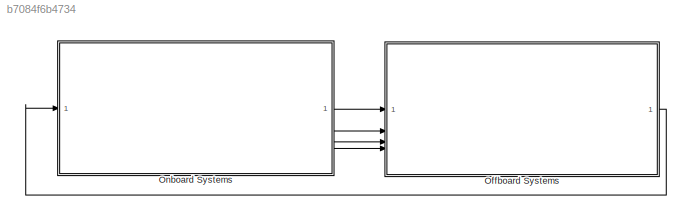
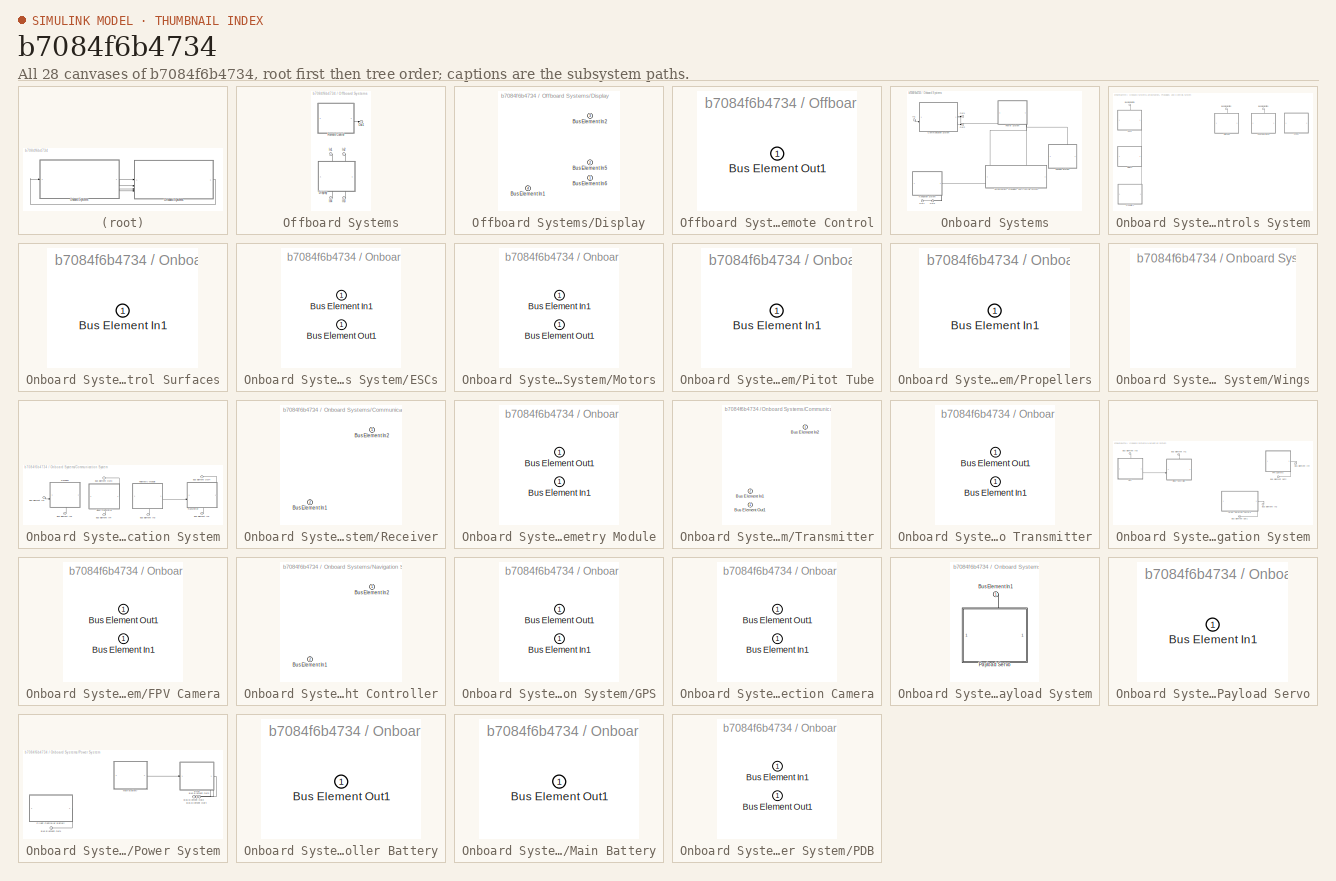
[diagram: thumbnail index - all 28 canvases of the model, root first then tree order]
MODEL slx_b7084f6b4734
KIND model
CONFIG AbsTol = auto
CONFIG EnableMultiTasking = off
CONFIG FixedStep = auto
CONFIG MaxStep = auto
CONFIG MinStep = auto
CONFIG RelTol = 1e-3
CONFIG SampleTimeConstraint = Unconstrained
CONFIG SolverName = VariableStepAuto
CONFIG StartTime = 0.0
CONFIG StopTime = 10.0
BLOCK [SubSystem] Offboard Systems
  PortSchema = {"entries":[{"content":{"headerSize":26,"margin":15,"minimumSpacing":25,"sides":[{"content":{"connectorIds":["In2","In1","In4","In3"]},"type":"ConnectorPlacement.EquallySpacedRectSide","uuid":"d7d6a46a-69a6-4a79-809b-721a0c8eab4f"},{"content":{"connectorIds":["Out1"],"side":"RIGHT"},"type":"ConnectorPlacement.EquallySpacedRectSide","uuid":"fe49b777-678a-4db7-ba73-a39a909a246c"},{"content":{"side":...<+288ch>
BLOCK [SubSystem] Offboard Systems/Display
  PortSchema = {"entries":[{"content":{"headerSize":26,"margin":15,"minimumSpacing":25,"sides":[{"content":{},"type":"ConnectorPlacement.EquallySpacedRectSide","uuid":"6c101896-e527-45ce-9d84-a3c14c06145c"},{"content":{"side":"RIGHT"},"type":"ConnectorPlacement.EquallySpacedRectSide","uuid":"7b64ffc1-aa7d-497e-846b-163cb9ac8cea"},{"content":{"connectorIds":["In4","In3"],"side":"TOP"},"type":"ConnectorPlacement.E...<+408ch>
BLOCK [Inport] Offboard Systems/Display/Bus Element In1
  Port = 4
BLOCK [Inport] Offboard Systems/Display/Bus Element In2
  Port = 3
BLOCK [Inport] Offboard Systems/Display/Bus Element In5
  Port = 2
BLOCK [Inport] Offboard Systems/Display/Bus Element In6
BLOCK [Inport] Offboard Systems/In1
BLOCK [Inport] Offboard Systems/In2
  Port = 2
BLOCK [Inport] Offboard Systems/In3
  Port = 3
BLOCK [Inport] Offboard Systems/In4
  Port = 4
BLOCK [Outport] Offboard Systems/Out1
BLOCK [SubSystem] Offboard Systems/Remote Control
  PortSchema = {"entries":[{"content":{"headerSize":26,"margin":15,"minimumSpacing":25,"sides":[{"content":{},"type":"ConnectorPlacement.EquallySpacedRectSide","uuid":"6c101896-e527-45ce-9d84-a3c14c06145c"},{"content":{"connectorIds":["Out1"],"side":"RIGHT"},"type":"ConnectorPlacement.EquallySpacedRectSide","uuid":"7b64ffc1-aa7d-497e-846b-163cb9ac8cea"},{"content":{"side":"TOP"},"type":"ConnectorPlacement.Equall...<+248ch>
BLOCK [Outport] Offboard Systems/Remote Control/Bus Element Out1
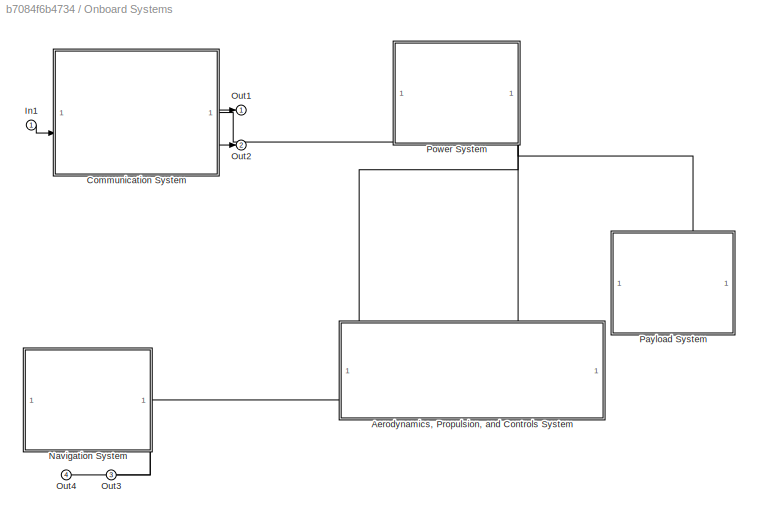
BLOCK [SubSystem] Onboard Systems
  PortSchema = {"entries":[{"content":{"headerSize":26,"margin":15,"minimumSpacing":25,"sides":[{"content":{"connectorIds":["In1"]},"type":"ConnectorPlacement.EquallySpacedRectSide","uuid":"d7d6a46a-69a6-4a79-809b-721a0c8eab4f"},{"content":{"connectorIds":["Out1","Out2","Out3","Out4"],"side":"RIGHT"},"type":"ConnectorPlacement.EquallySpacedRectSide","uuid":"fe49b777-678a-4db7-ba73-a39a909a246c"},{"content":{"sid...<+291ch>
BLOCK [SubSystem] Onboard Systems/Aerodynamics, Propulsion, and Controls System
  PortSchema = {"entries":[{"content":{"headerSize":26,"margin":15,"minimumSpacing":25,"sides":[{"content":{},"type":"ConnectorPlacement.EquallySpacedRectSide","uuid":"6c101896-e527-45ce-9d84-a3c14c06145c"},{"content":{"side":"RIGHT"},"type":"ConnectorPlacement.EquallySpacedRectSide","uuid":"7b64ffc1-aa7d-497e-846b-163cb9ac8cea"},{"content":{"connectorIds":["In1"],"side":"TOP"},"type":"ConnectorPlacement.Equally...<+247ch>  <repeated x6 — deduplicated; at blocks: Aerodynamics, Propulsion, and Controls System, Control Surfaces, Pitot Tube, Propellers, Payload System, Payload Servo>
BLOCK [Inport] Onboard Systems/Aerodynamics, Propulsion, and Controls System/Bus Element In1
BLOCK [Inport] Onboard Systems/Aerodynamics, Propulsion, and Controls System/Bus Element In2
BLOCK [Inport] Onboard Systems/Aerodynamics, Propulsion, and Controls System/Bus Element In3
BLOCK [SubSystem] Onboard Systems/Aerodynamics, Propulsion, and Controls System/Control Surfaces
BLOCK [Inport] Onboard Systems/Aerodynamics, Propulsion, and Controls System/Control Surfaces/Bus Element In1
BLOCK [SubSystem] Onboard Systems/Aerodynamics, Propulsion, and Controls System/ESCs
  PortSchema = {"entries":[{"content":{"headerSize":26,"margin":15,"minimumSpacing":25,"sides":[{"content":{},"type":"ConnectorPlacement.EquallySpacedRectSide","uuid":"6c101896-e527-45ce-9d84-a3c14c06145c"},{"content":{"side":"RIGHT"},"type":"ConnectorPlacement.EquallySpacedRectSide","uuid":"7b64ffc1-aa7d-497e-846b-163cb9ac8cea"},{"content":{"connectorIds":["In1"],"side":"TOP"},"type":"ConnectorPlacement.Equally...<+397ch>
BLOCK [Inport] Onboard Systems/Aerodynamics, Propulsion, and Controls System/ESCs/Bus Element In1
BLOCK [Outport] Onboard Systems/Aerodynamics, Propulsion, and Controls System/ESCs/Bus Element Out1
BLOCK [SubSystem] Onboard Systems/Aerodynamics, Propulsion, and Controls System/Motors
  PortSchema = {"entries":[{"content":{"headerSize":26,"margin":15,"minimumSpacing":25,"sides":[{"content":{},"type":"ConnectorPlacement.EquallySpacedRectSide","uuid":"6c101896-e527-45ce-9d84-a3c14c06145c"},{"content":{"side":"RIGHT"},"type":"ConnectorPlacement.EquallySpacedRectSide","uuid":"7b64ffc1-aa7d-497e-846b-163cb9ac8cea"},{"content":{"connectorIds":["In1"],"side":"TOP"},"type":"ConnectorPlacement.Equally...<+397ch>
BLOCK [Inport] Onboard Systems/Aerodynamics, Propulsion, and Controls System/Motors/Bus Element In1
BLOCK [Outport] Onboard Systems/Aerodynamics, Propulsion, and Controls System/Motors/Bus Element Out1
BLOCK [SubSystem] Onboard Systems/Aerodynamics, Propulsion, and Controls System/Pitot Tube
BLOCK [Inport] Onboard Systems/Aerodynamics, Propulsion, and Controls System/Pitot Tube/Bus Element In1
BLOCK [SubSystem] Onboard Systems/Aerodynamics, Propulsion, and Controls System/Propellers
BLOCK [Inport] Onboard Systems/Aerodynamics, Propulsion, and Controls System/Propellers/Bus Element In1
BLOCK [SubSystem] Onboard Systems/Aerodynamics, Propulsion, and Controls System/Wings
  PortSchema = {"entries":[{"content":{"headerSize":26,"margin":15,"minimumSpacing":25,"sides":[{"content":{},"type":"ConnectorPlacement.EquallySpacedRectSide","uuid":"6c101896-e527-45ce-9d84-a3c14c06145c"},{"content":{"side":"RIGHT"},"type":"ConnectorPlacement.EquallySpacedRectSide","uuid":"7b64ffc1-aa7d-497e-846b-163cb9ac8cea"},{"content":{"side":"TOP"},"type":"ConnectorPlacement.EquallySpacedRectSide","uuid":...<+224ch>
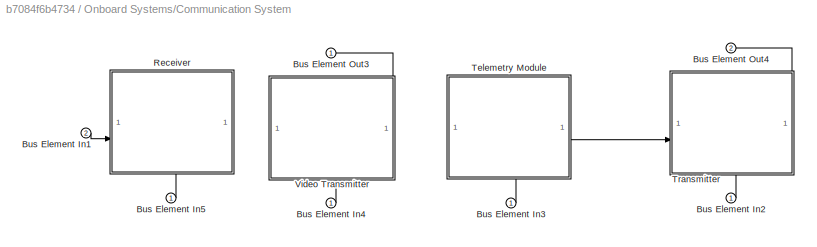
BLOCK [SubSystem] Onboard Systems/Communication System
  PortSchema = {"entries":[{"content":{"headerSize":26,"margin":15,"minimumSpacing":25,"sides":[{"content":{"connectorIds":["In2"]},"type":"ConnectorPlacement.EquallySpacedRectSide","uuid":"6c101896-e527-45ce-9d84-a3c14c06145c"},{"content":{"connectorIds":["Out1","Out2"],"side":"RIGHT"},"type":"ConnectorPlacement.EquallySpacedRectSide","uuid":"7b64ffc1-aa7d-497e-846b-163cb9ac8cea"},{"content":{"side":"TOP"},"typ...<+426ch>
BLOCK [Inport] Onboard Systems/Communication System/Bus Element In1
  Port = 2
BLOCK [Inport] Onboard Systems/Communication System/Bus Element In2
BLOCK [Inport] Onboard Systems/Communication System/Bus Element In3
BLOCK [Inport] Onboard Systems/Communication System/Bus Element In4
BLOCK [Inport] Onboard Systems/Communication System/Bus Element In5
BLOCK [Outport] Onboard Systems/Communication System/Bus Element Out3
BLOCK [Outport] Onboard Systems/Communication System/Bus Element Out4
  Port = 2
BLOCK [SubSystem] Onboard Systems/Communication System/Receiver
  PortSchema = {"entries":[{"content":{"headerSize":26,"margin":15,"minimumSpacing":25,"sides":[{"content":{"connectorIds":["In2"]},"type":"ConnectorPlacement.EquallySpacedRectSide","uuid":"6c101896-e527-45ce-9d84-a3c14c06145c"},{"content":{"side":"RIGHT"},"type":"ConnectorPlacement.EquallySpacedRectSide","uuid":"7b64ffc1-aa7d-497e-846b-163cb9ac8cea"},{"content":{"side":"TOP"},"type":"ConnectorPlacement.EquallyS...<+395ch>
BLOCK [Inport] Onboard Systems/Communication System/Receiver/Bus Element In1
  Port = 2
BLOCK [Inport] Onboard Systems/Communication System/Receiver/Bus Element In2
BLOCK [SubSystem] Onboard Systems/Communication System/Telemetry Module
  PortSchema = {"entries":[{"content":{"headerSize":26,"margin":15,"minimumSpacing":25,"sides":[{"content":{},"type":"ConnectorPlacement.EquallySpacedRectSide","uuid":"6c101896-e527-45ce-9d84-a3c14c06145c"},{"content":{"connectorIds":["Out1"],"side":"RIGHT"},"type":"ConnectorPlacement.EquallySpacedRectSide","uuid":"7b64ffc1-aa7d-497e-846b-163cb9ac8cea"},{"content":{"side":"TOP"},"type":"ConnectorPlacement.Equall...<+397ch>
BLOCK [Inport] Onboard Systems/Communication System/Telemetry Module/Bus Element In1
BLOCK [Outport] Onboard Systems/Communication System/Telemetry Module/Bus Element Out1
BLOCK [SubSystem] Onboard Systems/Communication System/Transmitter
  PortSchema = {"entries":[{"content":{"headerSize":26,"margin":15,"minimumSpacing":25,"sides":[{"content":{"connectorIds":["In2"]},"type":"ConnectorPlacement.EquallySpacedRectSide","uuid":"6c101896-e527-45ce-9d84-a3c14c06145c"},{"content":{"side":"RIGHT"},"type":"ConnectorPlacement.EquallySpacedRectSide","uuid":"7b64ffc1-aa7d-497e-846b-163cb9ac8cea"},{"content":{"connectorIds":["Out1"],"side":"TOP"},"type":"Con...<+419ch>
BLOCK [Inport] Onboard Systems/Communication System/Transmitter/Bus Element In1
  Port = 2
BLOCK [Inport] Onboard Systems/Communication System/Transmitter/Bus Element In2
BLOCK [Outport] Onboard Systems/Communication System/Transmitter/Bus Element Out1
BLOCK [SubSystem] Onboard Systems/Communication System/Video Transmitter
  PortSchema = {"entries":[{"content":{"headerSize":26,"margin":15,"minimumSpacing":25,"sides":[{"content":{},"type":"ConnectorPlacement.EquallySpacedRectSide","uuid":"6c101896-e527-45ce-9d84-a3c14c06145c"},{"content":{"side":"RIGHT"},"type":"ConnectorPlacement.EquallySpacedRectSide","uuid":"7b64ffc1-aa7d-497e-846b-163cb9ac8cea"},{"content":{"connectorIds":["Out1"],"side":"TOP"},"type":"ConnectorPlacement.Equall...<+397ch>
BLOCK [Inport] Onboard Systems/Communication System/Video Transmitter/Bus Element In1
BLOCK [Outport] Onboard Systems/Communication System/Video Transmitter/Bus Element Out1
BLOCK [Inport] Onboard Systems/In1
BLOCK [SubSystem] Onboard Systems/Navigation System
  PortSchema = {"entries":[{"content":{"headerSize":26,"margin":15,"minimumSpacing":25,"sides":[{"content":{},"type":"ConnectorPlacement.EquallySpacedRectSide","uuid":"6c101896-e527-45ce-9d84-a3c14c06145c"},{"content":{"connectorIds":["In1"],"side":"RIGHT"},"type":"ConnectorPlacement.EquallySpacedRectSide","uuid":"7b64ffc1-aa7d-497e-846b-163cb9ac8cea"},{"content":{"side":"TOP"},"type":"ConnectorPlacement.Equally...<+404ch>
BLOCK [Inport] Onboard Systems/Navigation System/Bus Element In1
BLOCK [Inport] Onboard Systems/Navigation System/Bus Element In2
BLOCK [Inport] Onboard Systems/Navigation System/Bus Element In3
BLOCK [Inport] Onboard Systems/Navigation System/Bus Element In4
BLOCK [Outport] Onboard Systems/Navigation System/Bus Element Out1
  Port = 2
BLOCK [Outport] Onboard Systems/Navigation System/Bus Element Out2
BLOCK [SubSystem] Onboard Systems/Navigation System/FPV Camera
  PortSchema = {"entries":[{"content":{"headerSize":26,"margin":15,"minimumSpacing":25,"sides":[{"content":{},"type":"ConnectorPlacement.EquallySpacedRectSide","uuid":"6c101896-e527-45ce-9d84-a3c14c06145c"},{"content":{"connectorIds":["In1"],"side":"RIGHT"},"type":"ConnectorPlacement.EquallySpacedRectSide","uuid":"7b64ffc1-aa7d-497e-846b-163cb9ac8cea"},{"content":{"side":"TOP"},"type":"ConnectorPlacement.Equally...<+397ch>
BLOCK [Inport] Onboard Systems/Navigation System/FPV Camera/Bus Element In1
BLOCK [Outport] Onboard Systems/Navigation System/FPV Camera/Bus Element Out1
BLOCK [SubSystem] Onboard Systems/Navigation System/Flight Controller
  PortSchema = {"entries":[{"content":{"headerSize":26,"margin":15,"minimumSpacing":25,"sides":[{"content":{"connectorIds":["In2"]},"type":"ConnectorPlacement.EquallySpacedRectSide","uuid":"6c101896-e527-45ce-9d84-a3c14c06145c"},{"content":{"side":"RIGHT"},"type":"ConnectorPlacement.EquallySpacedRectSide","uuid":"7b64ffc1-aa7d-497e-846b-163cb9ac8cea"},{"content":{"connectorIds":["In1"],"side":"TOP"},"type":"Conn...<+269ch>
BLOCK [Inport] Onboard Systems/Navigation System/Flight Controller/Bus Element In1
  Port = 2
BLOCK [Inport] Onboard Systems/Navigation System/Flight Controller/Bus Element In2
BLOCK [SubSystem] Onboard Systems/Navigation System/GPS
  PortSchema = {"entries":[{"content":{"headerSize":26,"margin":15,"minimumSpacing":25,"sides":[{"content":{},"type":"ConnectorPlacement.EquallySpacedRectSide","uuid":"6c101896-e527-45ce-9d84-a3c14c06145c"},{"content":{"connectorIds":["Out1"],"side":"RIGHT"},"type":"ConnectorPlacement.EquallySpacedRectSide","uuid":"7b64ffc1-aa7d-497e-846b-163cb9ac8cea"},{"content":{"connectorIds":["In1"],"side":"TOP"},"type":"Co...<+271ch>
BLOCK [Inport] Onboard Systems/Navigation System/GPS/Bus Element In1
BLOCK [Outport] Onboard Systems/Navigation System/GPS/Bus Element Out1
BLOCK [SubSystem] Onboard Systems/Navigation System/Target Detection Camera
  PortSchema = {"entries":[{"content":{"headerSize":26,"margin":15,"minimumSpacing":25,"sides":[{"content":{},"type":"ConnectorPlacement.EquallySpacedRectSide","uuid":"6c101896-e527-45ce-9d84-a3c14c06145c"},{"content":{"connectorIds":["In1"],"side":"RIGHT"},"type":"ConnectorPlacement.EquallySpacedRectSide","uuid":"7b64ffc1-aa7d-497e-846b-163cb9ac8cea"},{"content":{"side":"TOP"},"type":"ConnectorPlacement.Equally...<+397ch>
BLOCK [Inport] Onboard Systems/Navigation System/Target Detection Camera/Bus Element In1
BLOCK [Outport] Onboard Systems/Navigation System/Target Detection Camera/Bus Element Out1
BLOCK [Outport] Onboard Systems/Out1
BLOCK [Outport] Onboard Systems/Out2
  Port = 2
BLOCK [Outport] Onboard Systems/Out3
  Port = 3
BLOCK [Outport] Onboard Systems/Out4
  Port = 4
BLOCK [SubSystem] Onboard Systems/Payload System
BLOCK [Inport] Onboard Systems/Payload System/Bus Element In1
BLOCK [SubSystem] Onboard Systems/Payload System/Payload Servo
BLOCK [Inport] Onboard Systems/Payload System/Payload Servo/Bus Element In1
BLOCK [SubSystem] Onboard Systems/Power System
  PortSchema = {"entries":[{"content":{"headerSize":26,"margin":15,"minimumSpacing":25,"sides":[{"content":{},"type":"ConnectorPlacement.EquallySpacedRectSide","uuid":"6c101896-e527-45ce-9d84-a3c14c06145c"},{"content":{"side":"RIGHT"},"type":"ConnectorPlacement.EquallySpacedRectSide","uuid":"7b64ffc1-aa7d-497e-846b-163cb9ac8cea"},{"content":{"side":"TOP"},"type":"ConnectorPlacement.EquallySpacedRectSide","uuid":...<+395ch>
BLOCK [Outport] Onboard Systems/Power System/Bus Element Out1
  Port = 2
BLOCK [Outport] Onboard Systems/Power System/Bus Element Out2
  Port = 3
BLOCK [Outport] Onboard Systems/Power System/Bus Element Out3
  Port = 4
BLOCK [Outport] Onboard Systems/Power System/Bus Element Out4
BLOCK [SubSystem] Onboard Systems/Power System/Flight Controller Battery
  PortSchema = {"entries":[{"content":{"headerSize":26,"margin":15,"minimumSpacing":25,"sides":[{"content":{},"type":"ConnectorPlacement.EquallySpacedRectSide","uuid":"6c101896-e527-45ce-9d84-a3c14c06145c"},{"content":{"side":"RIGHT"},"type":"ConnectorPlacement.EquallySpacedRectSide","uuid":"7b64ffc1-aa7d-497e-846b-163cb9ac8cea"},{"content":{"side":"TOP"},"type":"ConnectorPlacement.EquallySpacedRectSide","uuid":...<+374ch>
BLOCK [Outport] Onboard Systems/Power System/Flight Controller Battery/Bus Element Out1
BLOCK [SubSystem] Onboard Systems/Power System/Main Battery
  PortSchema = {"entries":[{"content":{"headerSize":26,"margin":15,"minimumSpacing":25,"sides":[{"content":{},"type":"ConnectorPlacement.EquallySpacedRectSide","uuid":"6c101896-e527-45ce-9d84-a3c14c06145c"},{"content":{"connectorIds":["Out1"],"side":"RIGHT"},"type":"ConnectorPlacement.EquallySpacedRectSide","uuid":"7b64ffc1-aa7d-497e-846b-163cb9ac8cea"},{"content":{"side":"TOP"},"type":"ConnectorPlacement.Equall...<+248ch>
BLOCK [Outport] Onboard Systems/Power System/Main Battery/Bus Element Out1
BLOCK [SubSystem] Onboard Systems/Power System/PDB
  PortSchema = {"entries":[{"content":{"headerSize":26,"margin":15,"minimumSpacing":25,"sides":[{"content":{"connectorIds":["In1"]},"type":"ConnectorPlacement.EquallySpacedRectSide","uuid":"6c101896-e527-45ce-9d84-a3c14c06145c"},{"content":{"side":"RIGHT"},"type":"ConnectorPlacement.EquallySpacedRectSide","uuid":"7b64ffc1-aa7d-497e-846b-163cb9ac8cea"},{"content":{"side":"TOP"},"type":"ConnectorPlacement.EquallyS...<+396ch>
BLOCK [Inport] Onboard Systems/Power System/PDB/Bus Element In1
BLOCK [Outport] Onboard Systems/Power System/PDB/Bus Element Out1
LINE Offboard Systems/In1:1 -> Offboard Systems/Display:4
LINE Offboard Systems/In2:1 -> Offboard Systems/Display:3
LINE Offboard Systems/In3:1 -> Offboard Systems/Display:2
LINE Offboard Systems/In4:1 -> Offboard Systems/Display:1
LINE Offboard Systems/Remote Control:1 -> Offboard Systems/Out1:1
LINE Offboard Systems:1 -> Onboard Systems:1
LINE Onboard Systems/Aerodynamics, Propulsion, and Controls System/Bus Element In1:1 -> Onboard Systems/Aerodynamics, Propulsion, and Controls System/ESCs:1
LINE Onboard Systems/Aerodynamics, Propulsion, and Controls System/Bus Element In2:1 -> Onboard Systems/Aerodynamics, Propulsion, and Controls System/Pitot Tube:1
LINE Onboard Systems/Aerodynamics, Propulsion, and Controls System/Bus Element In3:1 -> Onboard Systems/Aerodynamics, Propulsion, and Controls System/Control Surfaces:1
LINE Onboard Systems/Aerodynamics, Propulsion, and Controls System/ESCs:1 -> Onboard Systems/Aerodynamics, Propulsion, and Controls System/Motors:1
LINE Onboard Systems/Aerodynamics, Propulsion, and Controls System/Motors:1 -> Onboard Systems/Aerodynamics, Propulsion, and Controls System/Propellers:1
LINE Onboard Systems/Communication System/Bus Element In1:1 -> Onboard Systems/Communication System/Receiver:2
LINE Onboard Systems/Communication System/Bus Element In2:1 -> Onboard Systems/Communication System/Transmitter:1
LINE Onboard Systems/Communication System/Bus Element In3:1 -> Onboard Systems/Communication System/Telemetry Module:1
LINE Onboard Systems/Communication System/Bus Element In4:1 -> Onboard Systems/Communication System/Video Transmitter:1
LINE Onboard Systems/Communication System/Bus Element In5:1 -> Onboard Systems/Communication System/Receiver:1
LINE Onboard Systems/Communication System/Telemetry Module:1 -> Onboard Systems/Communication System/Transmitter:2
LINE Onboard Systems/Communication System/Transmitter:1 -> Onboard Systems/Communication System/Bus Element Out4:1
LINE Onboard Systems/Communication System/Video Transmitter:1 -> Onboard Systems/Communication System/Bus Element Out3:1
LINE Onboard Systems/Communication System:1 -> Onboard Systems/Out1:1
LINE Onboard Systems/Communication System:2 -> Onboard Systems/Out2:1
LINE Onboard Systems/In1:1 -> Onboard Systems/Communication System:2
LINE Onboard Systems/Navigation System/Bus Element In1:1 -> Onboard Systems/Navigation System/Flight Controller:1
LINE Onboard Systems/Navigation System/Bus Element In2:1 -> Onboard Systems/Navigation System/Target Detection Camera:1
LINE Onboard Systems/Navigation System/Bus Element In3:1 -> Onboard Systems/Navigation System/GPS:1
LINE Onboard Systems/Navigation System/Bus Element In4:1 -> Onboard Systems/Navigation System/FPV Camera:1
LINE Onboard Systems/Navigation System/FPV Camera:1 -> Onboard Systems/Navigation System/Bus Element Out2:1
LINE Onboard Systems/Navigation System/GPS:1 -> Onboard Systems/Navigation System/Flight Controller:2
LINE Onboard Systems/Navigation System/Target Detection Camera:1 -> Onboard Systems/Navigation System/Bus Element Out1:1
LINE Onboard Systems/Navigation System:1 -> Onboard Systems/Out3:1
LINE Onboard Systems/Navigation System:2 -> Onboard Systems/Out4:1
LINE Onboard Systems/Payload System/Bus Element In1:1 -> Onboard Systems/Payload System/Payload Servo:1
LINE Onboard Systems/Power System/Flight Controller Battery:1 -> Onboard Systems/Power System/Bus Element Out1:1
LINE Onboard Systems/Power System/Main Battery:1 -> Onboard Systems/Power System/PDB:1
NET Onboard Systems/Power System/PDB:1 -> Onboard Systems/Power System/Bus Element Out2:1, Onboard Systems/Power System/Bus Element Out3:1, Onboard Systems/Power System/Bus Element Out4:1
LINE Onboard Systems/Power System:1 -> Onboard Systems/Communication System:1
LINE Onboard Systems/Power System:2 -> Onboard Systems/Navigation System:1
LINE Onboard Systems/Power System:3 -> Onboard Systems/Aerodynamics, Propulsion, and Controls System:1
LINE Onboard Systems/Power System:4 -> Onboard Systems/Payload System:1
LINE Onboard Systems:1 -> Offboard Systems:2
LINE Onboard Systems:2 -> Offboard Systems:1
LINE Onboard Systems:3 -> Offboard Systems:4
LINE Onboard Systems:4 -> Offboard Systems:3
note: NET lines group one-source signal fan-out (src -> all destinations, sorted); 1:1 wires keep LINE
